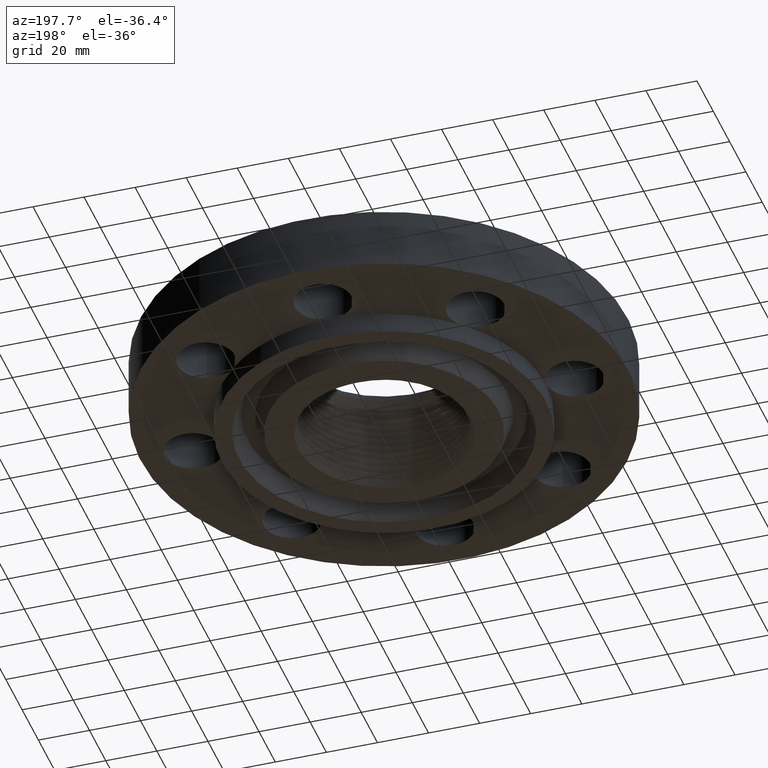
[diagram: clean part render]
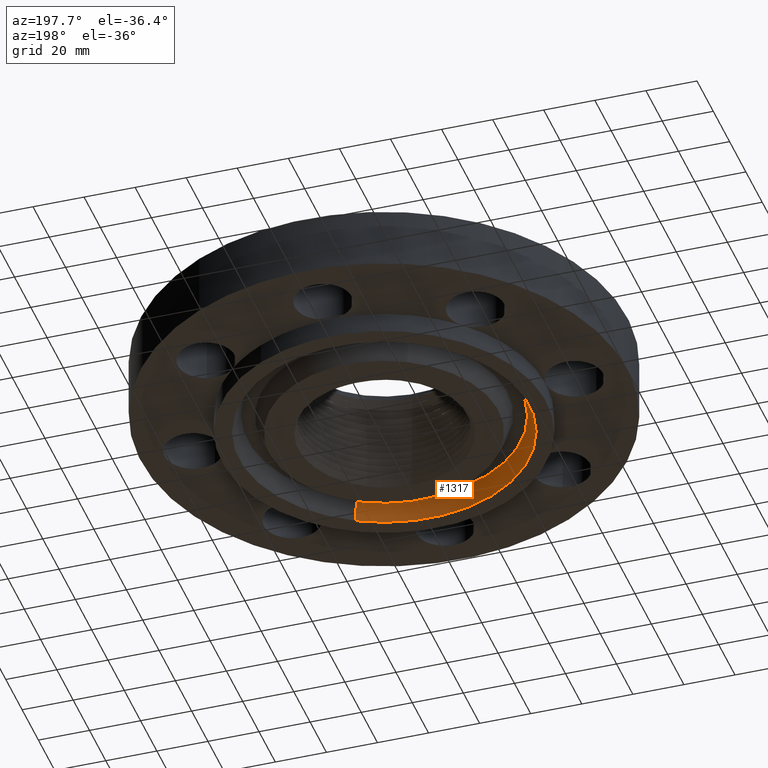
[diagram: same view with one face highlighted and labeled with its STEP entity id]
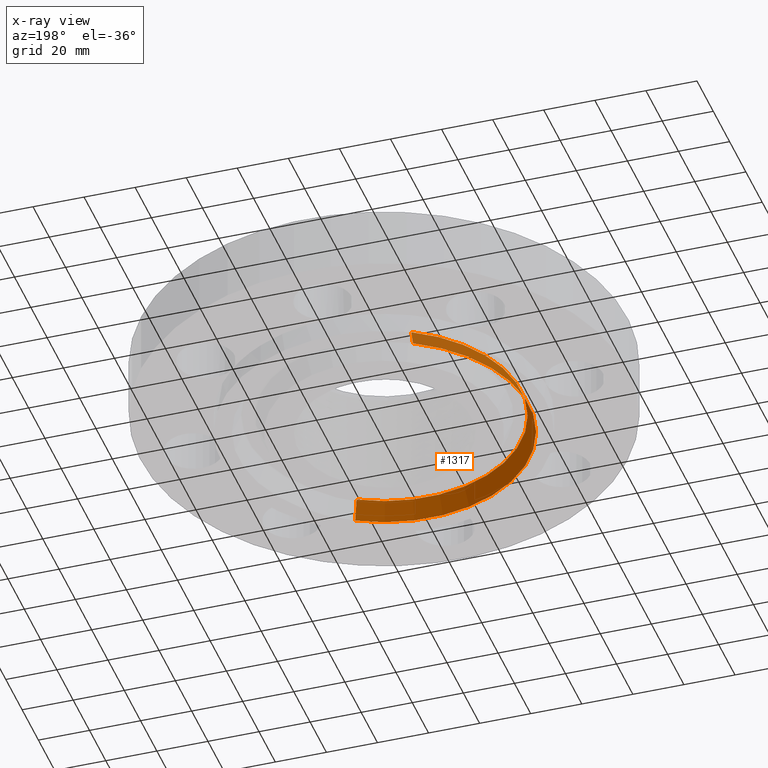
[diagram: x-ray of the same camera — body ghosted, the highlighted face saturated]
A machine part, auxiliary view. The second image highlights one B-rep face of the part: STEP entity #1317.
The next image is the same camera in x-ray: the body ghosted, the highlighted face saturated — about 0% of this face is hidden behind the body in this view.
In plain terms, the highlighted conical surface has half-angle 23 deg.
Its self-contained STEP definition (entity closure, byte-faithful):
#382=AXIS2_PLACEMENT_3D('Circle Axis2P3D',#380,#381,$) ;
#1263=AXIS2_PLACEMENT_3D('Circle Axis2P3D',#1261,#1262,$) ;
#1299=AXIS2_PLACEMENT_3D('Cone Axis2P3D',#1296,#1297,#1298) ;
#380=CARTESIAN_POINT('Axis2P3D Location',(1.39870617276E-016,2.79741234551E-016,-0.312500000001)) ;
#384=CARTESIAN_POINT('Vertex',(1.07122842346,-1.9608704763,-0.312500000001)) ;
#386=CARTESIAN_POINT('Vertex',(-1.07122842346,1.9608704763,-0.312500000001)) ;
#1261=CARTESIAN_POINT('Axis2P3D Location',(0.,0.,-0.0190701156784)) ;
#1265=CARTESIAN_POINT('Vertex',(-1.01151424851,1.85156441223,-0.0190701156784)) ;
#1267=CARTESIAN_POINT('Vertex',(1.01151424851,-1.85156441223,-0.0190701156784)) ;
#1296=CARTESIAN_POINT('Axis2P3D Location',(0.,0.,-0.0190701156784)) ;
#1301=CARTESIAN_POINT('Line Origine',(-1.04137133599,1.90621744426,-0.16578505784)) ;
#1306=CARTESIAN_POINT('Line Origine',(1.04137133599,-1.90621744426,-0.16578505784)) ;
#381=DIRECTION('Axis2P3D Direction',(0.,0.,-0.0393700787402)) ;
#1262=DIRECTION('Axis2P3D Direction',(0.,0.,0.0393700787402)) ;
#1297=DIRECTION('Axis2P3D Direction',(-0.,-0.,-0.0393700787402)) ;
#1298=DIRECTION('Axis2P3D XDirection',(-0.0188750212049,0.0345504945626,0.)) ;
#1302=DIRECTION('Vector Direction',(-0.00737505833565,0.0134999537303,-0.0362403485611)) ;
#1307=DIRECTION('Vector Direction',(0.00737505833565,-0.0134999537303,-0.0362403485611)) ;
#1303=VECTOR('Line Direction',#1302,0.0393700787402) ;
#1308=VECTOR('Line Direction',#1307,0.0393700787402) ;
#1312=ORIENTED_EDGE('',*,*,#388,.T.) ;
#1313=ORIENTED_EDGE('',*,*,#1305,.T.) ;
#1314=ORIENTED_EDGE('',*,*,#1269,.T.) ;
#1315=ORIENTED_EDGE('',*,*,#1310,.F.) ;
#1317=ADVANCED_FACE('PartBody',(#1316),#1300,.F.) ;
#383=CIRCLE('generated circle',#382,2.23440000001) ;
#1264=CIRCLE('generated circle',#1263,2.10984640379) ;
#1300=CONICAL_SURFACE('Cone',#1299,2.10984640379,0.401425727959) ;
#388=EDGE_CURVE('',#385,#387,#383,.T.) ;
#1269=EDGE_CURVE('',#1266,#1268,#1264,.T.) ;
#1305=EDGE_CURVE('',#387,#1266,#1304,.F.) ;
#1310=EDGE_CURVE('',#385,#1268,#1309,.F.) ;
#1311=EDGE_LOOP('',(#1312,#1313,#1314,#1315)) ;
#1316=FACE_OUTER_BOUND('',#1311,.T.) ;
#1304=LINE('Line',#1301,#1303) ;
#1309=LINE('Line',#1306,#1308) ;
#385=VERTEX_POINT('',#384) ;
#387=VERTEX_POINT('',#386) ;
#1266=VERTEX_POINT('',#1265) ;
#1268=VERTEX_POINT('',#1267) ;